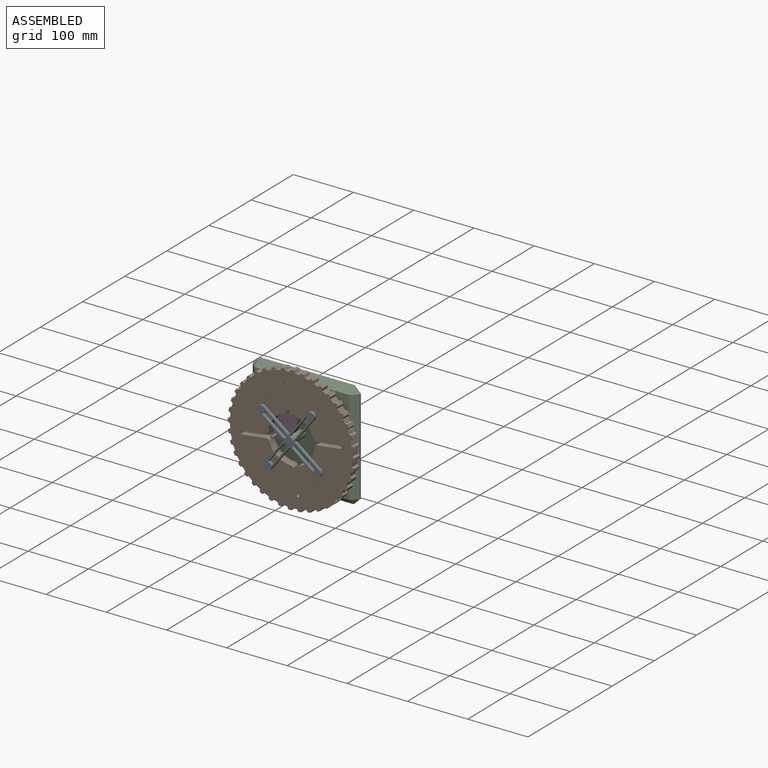
[diagram: assembled view]
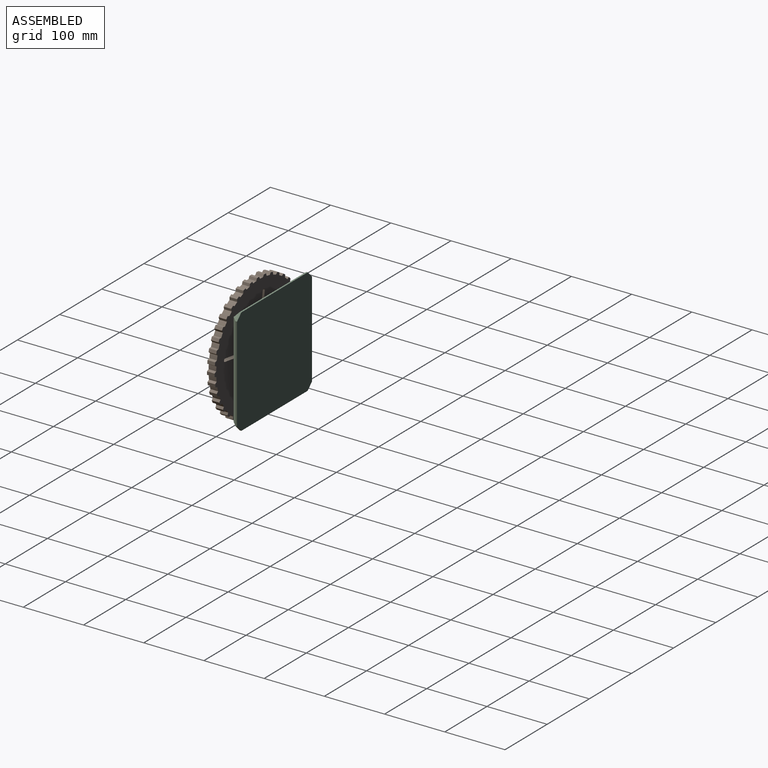
[diagram: assembled view, second angle]
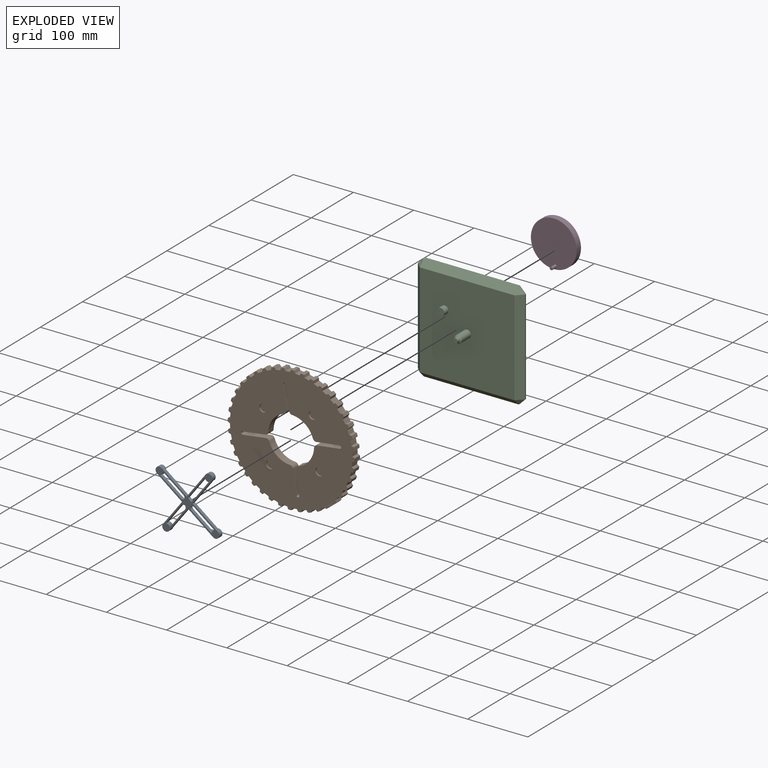
[diagram: exploded view]
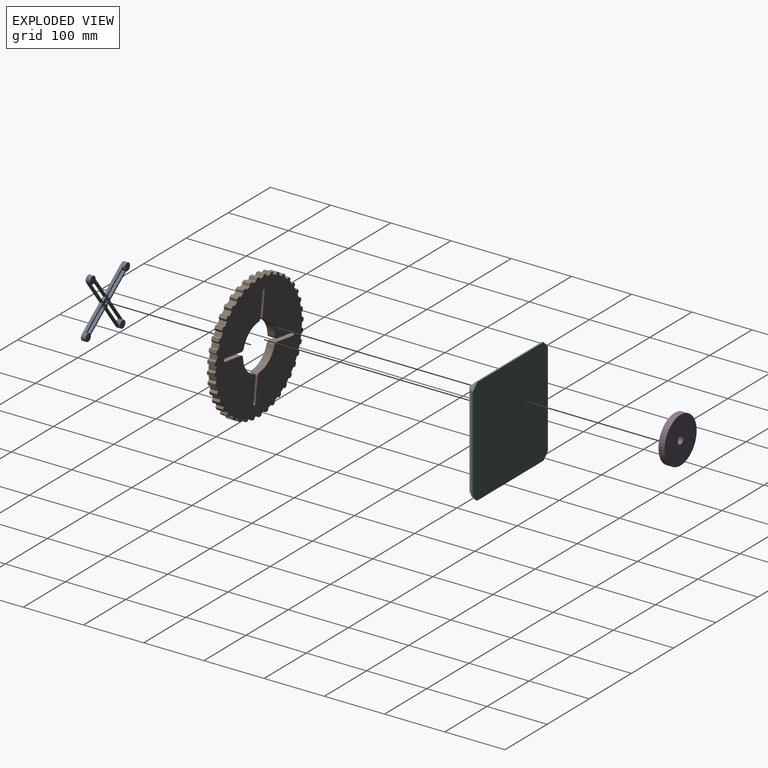
[diagram: exploded view, second angle]
ASSEMBLY  parts=4 mates=3
PART A: 35 faces, bbox 129.5x7.6x129.5 mm
  f0: plane 129.54x129.54mm, normal (0,-1,0), area 1686.7mm2, adj f1,f2,f3,f4,f5,f6,f7,f8
  f1: plane 41.91x5.08mm, normal (-1,0,0), area 212.9mm2, adj f0,f18,f22,f31
  f2: plane 41.91x5.08mm, normal (1,0,0), area 212.9mm2, adj f0,f18,f22,f32
  f3: plane 41.91x5.08mm, normal (0,0,1), area 212.9mm2, adj f0,f15,f22,f29
  f4: plane 41.91x5.08mm, normal (0,0,-1), area 212.9mm2, adj f0,f15,f22,f30
  f5: plane 41.91x5.08mm, normal (1,0,0), area 212.9mm2, adj f0,f12,f22,f27
  f6: plane 41.91x5.08mm, normal (-1,0,0), area 212.9mm2, adj f0,f12,f22,f28
  f7: plane 46.99x5.08mm, normal (0,0,-1), area 238.7mm2, adj f0,f8,f10,f22
  f8: cylinder r=6.35mm len=12.7mm, axis (0,1,0), area 244.2mm2, adj f0,f7,f9,f20,f21,f22,f26
  f9: plane 46.99x5.08mm, normal (0,0,1), area 238.7mm2, adj f0,f8,f10,f22
  f10: plane 7.62x5.08mm, normal (1,0,0), area 38.7mm2, adj f0,f7,f9,f22
  f11: plane 52.07x5.08mm, normal (1,0,0), area 264.5mm2, adj f0,f12,f21,f22
  f12: cylinder r=6.35mm len=12.7mm, axis (0,1,0), area 244.2mm2, adj f0,f5,f6,f11,f13,f22,f23
  f13: plane 52.07x5.08mm, normal (-1,0,0), area 264.5mm2, adj f0,f12,f14,f22
  f14: plane 52.07x5.08mm, normal (0,0,1), area 264.5mm2, adj f0,f13,f15,f22
  f15: cylinder r=6.35mm len=12.7mm, axis (0,1,0), area 244.2mm2, adj f0,f3,f4,f14,f16,f22,f24
  f16: plane 52.07x5.08mm, normal (0,0,-1), area 264.5mm2, adj f0,f15,f17,f22
  f17: plane 52.07x5.08mm, normal (-1,0,0), area 264.5mm2, adj f0,f16,f18,f22
  f18: cylinder r=6.35mm len=12.7mm, axis (0,1,0), area 244.2mm2, adj f0,f1,f2,f17,f19,f22,f25
  f19: plane 52.07x5.08mm, normal (1,0,0), area 264.5mm2, adj f0,f18,f20,f22
  f20: plane 52.07x5.08mm, normal (0,0,-1), area 264.5mm2, adj f0,f8,f19,f22
  f21: plane 52.07x5.08mm, normal (0,0,1), area 264.5mm2, adj f0,f8,f11,f22
  f22: plane 116.84x116.84mm, normal (0,1,0), area 1134.4mm2, adj f1,f2,f3,f4,f5,f6,f7,f8
  f23: plane 12.7x12.7mm, normal (0,1,0), area 126.7mm2, adj f12
  f24: plane 12.7x12.7mm, normal (0,1,0), area 126.7mm2, adj f15
  f25: plane 12.7x12.7mm, normal (0,1,0), area 126.7mm2, adj f18
  f26: plane 12.7x12.7mm, normal (0,1,0), area 126.7mm2, adj f8
  f27: cylinder r=5.08mm len=5.08mm, axis (0,-1,0), area 34mm2, adj f0,f5,f22,f28
  f28: cylinder r=5.08mm len=5.08mm, axis (0,1,0), area 34mm2, adj f0,f6,f22,f27
  f29: cylinder r=5.08mm len=5.08mm, axis (0,-1,0), area 34mm2, adj f0,f3,f22,f30
  f30: cylinder r=5.08mm len=5.08mm, axis (0,1,0), area 34mm2, adj f0,f4,f22,f29
  f31: cylinder r=5.08mm len=5.08mm, axis (0,-1,0), area 34mm2, adj f0,f1,f22,f32
  f32: cylinder r=5.08mm len=5.08mm, axis (0,1,0), area 34mm2, adj f0,f2,f22,f31
  f33: cylinder r=3.81mm len=7.62mm, axis (0,1,0), area 60.8mm2, adj f22,f34
  f34: plane 7.62x7.62mm, normal (0,1,0), area 45.6mm2, adj f33
PART B: 194 faces, bbox 210.8x12.7x210.8 mm
  f0: cylinder r=38.1mm len=30.78mm, axis (0,1,0), area 588.4mm2, adj f180,f181,f182,f189
  f1: plane 38.86x12.7mm, normal (0,0,-1), area 493.6mm2, adj f2,f180,f181,f182
  f2: cylinder r=2.54mm len=12.7mm, axis (0,1,0), area 101.3mm2, adj f1,f3,f180,f181
  f3: plane 38.86x12.7mm, normal (0,0,1), area 493.6mm2, adj f2,f180,f181,f183
  f4: cylinder r=38.1mm len=30.78mm, axis (0,1,0), area 588.4mm2, adj f180,f181,f183,f184
  f5: plane 38.86x12.7mm, normal (-1,0,0), area 493.6mm2, adj f6,f180,f181,f184
  f6: cylinder r=2.54mm len=12.7mm, axis (0,1,0), area 101.3mm2, adj f5,f7,f180,f181
  f7: plane 38.86x12.7mm, normal (1,0,0), area 493.6mm2, adj f6,f180,f181,f185
  f8: cylinder r=38.1mm len=30.78mm, axis (0,1,0), area 588.4mm2, adj f180,f181,f185,f186
  f9: plane 38.86x12.7mm, normal (0,0,1), area 493.6mm2, adj f10,f180,f181,f186
  f10: cylinder r=2.54mm len=12.7mm, axis (0,1,0), area 101.3mm2, adj f9,f11,f180,f181
  f11: plane 38.86x12.7mm, normal (0,0,-1), area 493.6mm2, adj f10,f180,f181,f187
  f12: cylinder r=38.1mm len=30.78mm, axis (0,1,0), area 588.4mm2, adj f180,f181,f187,f188
  f13: plane 38.86x12.7mm, normal (1,0,0), area 493.6mm2, adj f14,f180,f181,f188
  f14: cylinder r=2.54mm len=12.7mm, axis (0,1,0), area 101.3mm2, adj f13,f179,f180,f181
  f15: plane 12.7x3.57mm, normal (-0.83,0,-0.56), area 54.7mm2, adj f16,f178,f180,f181
  f16: plane 12.7x5.02mm, normal (0.16,0,-0.99), area 64.5mm2, adj f15,f17,f180,f181
  f17: plane 12.7x4.14mm, normal (0.96,0,-0.28), area 54.7mm2, adj f16,f18,f180,f181
  f18: cylinder r=101.6mm len=12.7mm, axis (0,1,0), area 91.9mm2, adj f17,f19,f180,f181
  f19: plane 12.7x3.15mm, normal (-0.73,0,-0.68), area 54.7mm2, adj f18,f20,f180,f181
  f20: plane 12.7x4.83mm, normal (0.31,0,-0.95), area 64.5mm2, adj f19,f21,f180,f181
  f21: plane 12.7x4.28mm, normal (0.99,0,-0.12), area 54.7mm2, adj f20,f22,f180,f181
  f22: cylinder r=101.6mm len=12.7mm, axis (0,1,0), area 91.9mm2, adj f21,f23,f180,f181
  f23: plane 12.7x3.39mm, normal (-0.62,0,-0.79), area 54.7mm2, adj f22,f24,f180,f181
  f24: plane 12.7x4.53mm, normal (0.45,0,-0.89), area 64.5mm2, adj f23,f25,f180,f181
  f25: plane 12.7x4.3mm, normal (1,0,0.03), area 54.7mm2, adj f24,f26,f180,f181
  f26: cylinder r=101.6mm len=12.7mm, axis (0,1,0), area 91.9mm2, adj f25,f27,f180,f181
  f27: plane 12.7x3.77mm, normal (-0.48,0,-0.87), area 54.7mm2, adj f26,f28,f180,f181
  f28: plane 12.7x4.11mm, normal (0.59,0,-0.81), area 64.5mm2, adj f27,f29,f180,f181
  f29: plane 12.7x4.23mm, normal (0.98,0,0.19), area 54.7mm2, adj f28,f30,f180,f181
  f30: cylinder r=101.6mm len=12.7mm, axis (0,1,0), area 91.9mm2, adj f29,f31,f180,f181
  f31: plane 12.7x4.05mm, normal (-0.34,0,-0.94), area 54.7mm2, adj f30,f32,f180,f181
  f32: plane 12.7x3.59mm, normal (0.71,0,-0.71), area 64.5mm2, adj f31,f33,f180,f181
  f33: plane 12.7x4.05mm, normal (0.94,0,0.34), area 54.7mm2, adj f32,f34,f180,f181
  f34: cylinder r=101.6mm len=12.7mm, axis (0,1,0), area 91.9mm2, adj f33,f35,f180,f181
  f35: plane 12.7x4.23mm, normal (-0.19,0,-0.98), area 54.7mm2, adj f34,f36,f180,f181
  f36: plane 12.7x4.11mm, normal (0.81,0,-0.59), area 64.5mm2, adj f35,f37,f180,f181
  f37: plane 12.7x3.77mm, normal (0.87,0,0.48), area 54.7mm2, adj f36,f38,f180,f181
  f38: cylinder r=101.6mm len=12.7mm, axis (0,1,0), area 91.9mm2, adj f37,f39,f180,f181
  f39: plane 12.7x4.3mm, normal (-0.03,0,-1), area 54.7mm2, adj f38,f40,f180,f181
  f40: plane 12.7x4.53mm, normal (0.89,0,-0.45), area 64.5mm2, adj f39,f41,f180,f181
  f41: plane 12.7x3.39mm, normal (0.79,0,0.62), area 54.7mm2, adj f40,f42,f180,f181
  f42: cylinder r=101.6mm len=12.7mm, axis (0,1,0), area 91.9mm2, adj f41,f43,f180,f181
  f43: plane 12.7x4.28mm, normal (0.12,0,-0.99), area 54.7mm2, adj f42,f44,f180,f181
  f44: plane 12.7x4.83mm, normal (0.95,0,-0.31), area 64.5mm2, adj f43,f45,f180,f181
  f45: plane 12.7x3.15mm, normal (0.68,0,0.73), area 54.7mm2, adj f44,f46,f180,f181
  f46: cylinder r=101.6mm len=12.7mm, axis (0,1,0), area 91.9mm2, adj f45,f47,f180,f181
  f47: plane 12.7x4.14mm, normal (0.28,0,-0.96), area 54.7mm2, adj f46,f48,f180,f181
  f48: plane 12.7x5.02mm, normal (0.99,0,-0.16), area 64.5mm2, adj f47,f49,f180,f181
  f49: plane 12.7x3.57mm, normal (0.56,0,0.83), area 54.7mm2, adj f48,f50,f180,f181
  f50: cylinder r=101.6mm len=12.7mm, axis (0,1,0), area 91.9mm2, adj f49,f51,f180,f181
  f51: plane 12.7x3.9mm, normal (0.42,0,-0.91), area 54.7mm2, adj f50,f52,f180,f181
  f52: plane 12.7x5.08mm, normal (1,0,0), area 64.5mm2, adj f51,f53,f180,f181
  f53: plane 12.7x3.9mm, normal (0.42,0,0.91), area 54.7mm2, adj f52,f54,f180,f181
  f54: cylinder r=101.6mm len=12.7mm, axis (0,1,0), area 91.9mm2, adj f53,f55,f180,f181
  f55: plane 12.7x3.57mm, normal (0.56,0,-0.83), area 54.7mm2, adj f54,f56,f180,f181
  f56: plane 12.7x5.02mm, normal (0.99,0,0.16), area 64.5mm2, adj f55,f57,f180,f181
  f57: plane 12.7x4.14mm, normal (0.28,0,0.96), area 54.7mm2, adj f56,f58,f180,f181
  f58: cylinder r=101.6mm len=12.7mm, axis (0,1,0), area 91.9mm2, adj f57,f59,f180,f181
  f59: plane 12.7x3.15mm, normal (0.68,0,-0.73), area 54.7mm2, adj f58,f60,f180,f181
  f60: plane 12.7x4.83mm, normal (0.95,0,0.31), area 64.5mm2, adj f59,f61,f180,f181
  f61: plane 12.7x4.28mm, normal (0.12,0,0.99), area 54.7mm2, adj f60,f62,f180,f181
  f62: cylinder r=101.6mm len=12.7mm, axis (0,1,0), area 91.9mm2, adj f61,f63,f180,f181
  f63: plane 12.7x3.39mm, normal (0.79,0,-0.62), area 54.7mm2, adj f62,f64,f180,f181
  f64: plane 12.7x4.53mm, normal (0.89,0,0.45), area 64.5mm2, adj f63,f65,f180,f181
  f65: plane 12.7x4.3mm, normal (-0.03,0,1), area 54.7mm2, adj f64,f66,f180,f181
  f66: cylinder r=101.6mm len=12.7mm, axis (0,1,0), area 91.9mm2, adj f65,f67,f180,f181
  f67: plane 12.7x3.77mm, normal (0.87,0,-0.48), area 54.7mm2, adj f66,f68,f180,f181
  f68: plane 12.7x4.11mm, normal (0.81,0,0.59), area 64.5mm2, adj f67,f69,f180,f181
  f69: plane 12.7x4.23mm, normal (-0.19,0,0.98), area 54.7mm2, adj f68,f70,f180,f181
  f70: cylinder r=101.6mm len=12.7mm, axis (0,1,0), area 91.9mm2, adj f69,f71,f180,f181
  f71: plane 12.7x4.05mm, normal (0.94,0,-0.34), area 54.7mm2, adj f70,f72,f180,f181
  f72: plane 12.7x3.59mm, normal (0.71,0,0.71), area 64.5mm2, adj f71,f73,f180,f181
  f73: plane 12.7x4.05mm, normal (-0.34,0,0.94), area 54.7mm2, adj f72,f74,f180,f181
  f74: cylinder r=101.6mm len=12.7mm, axis (0,1,0), area 91.9mm2, adj f73,f75,f180,f181
  f75: plane 12.7x4.23mm, normal (0.98,0,-0.19), area 54.7mm2, adj f74,f76,f180,f181
  f76: plane 12.7x4.11mm, normal (0.59,0,0.81), area 64.5mm2, adj f75,f77,f180,f181
  f77: plane 12.7x3.77mm, normal (-0.48,0,0.87), area 54.7mm2, adj f76,f78,f180,f181
  f78: cylinder r=101.6mm len=12.7mm, axis (0,1,0), area 91.9mm2, adj f77,f79,f180,f181
  f79: plane 12.7x4.3mm, normal (1,0,-0.03), area 54.7mm2, adj f78,f80,f180,f181
  f80: plane 12.7x4.53mm, normal (0.45,0,0.89), area 64.5mm2, adj f79,f81,f180,f181
  f81: plane 12.7x3.39mm, normal (-0.62,0,0.79), area 54.7mm2, adj f80,f82,f180,f181
  f82: cylinder r=101.6mm len=12.7mm, axis (0,1,0), area 91.9mm2, adj f81,f83,f180,f181
  f83: plane 12.7x4.28mm, normal (0.99,0,0.12), area 54.7mm2, adj f82,f84,f180,f181
  f84: plane 12.7x4.83mm, normal (0.31,0,0.95), area 64.5mm2, adj f83,f85,f180,f181
  f85: plane 12.7x3.15mm, normal (-0.73,0,0.68), area 54.7mm2, adj f84,f86,f180,f181
  f86: cylinder r=101.6mm len=12.7mm, axis (0,1,0), area 91.9mm2, adj f85,f87,f180,f181
  f87: plane 12.7x4.14mm, normal (0.96,0,0.28), area 54.7mm2, adj f86,f88,f180,f181
  f88: plane 12.7x5.02mm, normal (0.16,0,0.99), area 64.5mm2, adj f87,f89,f180,f181
  f89: plane 12.7x3.57mm, normal (-0.83,0,0.56), area 54.7mm2, adj f88,f90,f180,f181
  f90: cylinder r=101.6mm len=12.7mm, axis (0,1,0), area 91.9mm2, adj f89,f91,f180,f181
  f91: plane 12.7x3.9mm, normal (0.91,0,0.42), area 54.7mm2, adj f90,f92,f180,f181
  f92: plane 12.7x5.08mm, normal (0,0,1), area 64.5mm2, adj f91,f93,f180,f181
  f93: plane 12.7x3.9mm, normal (-0.91,0,0.42), area 54.7mm2, adj f92,f94,f180,f181
  f94: cylinder r=101.6mm len=12.7mm, axis (0,1,0), area 91.9mm2, adj f93,f95,f180,f181
  f95: plane 12.7x3.57mm, normal (0.83,0,0.56), area 54.7mm2, adj f94,f96,f180,f181
  f96: plane 12.7x5.02mm, normal (-0.16,0,0.99), area 64.5mm2, adj f95,f97,f180,f181
  f97: plane 12.7x4.14mm, normal (-0.96,0,0.28), area 54.7mm2, adj f96,f98,f180,f181
  f98: cylinder r=101.6mm len=12.7mm, axis (0,1,0), area 91.9mm2, adj f97,f99,f180,f181
  f99: plane 12.7x3.15mm, normal (0.73,0,0.68), area 54.7mm2, adj f98,f100,f180,f181
  f100: plane 12.7x4.83mm, normal (-0.31,0,0.95), area 64.5mm2, adj f99,f101,f180,f181
  f101: plane 12.7x4.28mm, normal (-0.99,0,0.12), area 54.7mm2, adj f100,f102,f180,f181
  f102: cylinder r=101.6mm len=12.7mm, axis (0,1,0), area 91.9mm2, adj f101,f103,f180,f181
  f103: plane 12.7x3.39mm, normal (0.62,0,0.79), area 54.7mm2, adj f102,f104,f180,f181
  f104: plane 12.7x4.53mm, normal (-0.45,0,0.89), area 64.5mm2, adj f103,f105,f180,f181
  f105: plane 12.7x4.3mm, normal (-1,0,-0.03), area 54.7mm2, adj f104,f106,f180,f181
  f106: cylinder r=101.6mm len=12.7mm, axis (0,1,0), area 91.9mm2, adj f105,f107,f180,f181
  f107: plane 12.7x3.77mm, normal (0.48,0,0.87), area 54.7mm2, adj f106,f108,f180,f181
  f108: plane 12.7x4.11mm, normal (-0.59,0,0.81), area 64.5mm2, adj f107,f109,f180,f181
  f109: plane 12.7x4.23mm, normal (-0.98,0,-0.19), area 54.7mm2, adj f108,f110,f180,f181
  f110: cylinder r=101.6mm len=12.7mm, axis (0,1,0), area 91.9mm2, adj f109,f111,f180,f181
  f111: plane 12.7x4.05mm, normal (0.34,0,0.94), area 54.7mm2, adj f110,f112,f180,f181
  f112: plane 12.7x3.59mm, normal (-0.71,0,0.71), area 64.5mm2, adj f111,f113,f180,f181
  f113: plane 12.7x4.05mm, normal (-0.94,0,-0.34), area 54.7mm2, adj f112,f114,f180,f181
  f114: cylinder r=101.6mm len=12.7mm, axis (0,1,0), area 91.9mm2, adj f113,f115,f180,f181
  f115: plane 12.7x4.23mm, normal (0.19,0,0.98), area 54.7mm2, adj f114,f116,f180,f181
  f116: plane 12.7x4.11mm, normal (-0.81,0,0.59), area 64.5mm2, adj f115,f117,f180,f181
  f117: plane 12.7x3.77mm, normal (-0.87,0,-0.48), area 54.7mm2, adj f116,f118,f180,f181
  f118: cylinder r=101.6mm len=12.7mm, axis (0,1,0), area 91.9mm2, adj f117,f119,f180,f181
  f119: plane 12.7x4.3mm, normal (0.03,0,1), area 54.7mm2, adj f118,f120,f180,f181
  f120: plane 12.7x4.53mm, normal (-0.89,0,0.45), area 64.5mm2, adj f119,f121,f180,f181
  f121: plane 12.7x3.39mm, normal (-0.79,0,-0.62), area 54.7mm2, adj f120,f122,f180,f181
  f122: cylinder r=101.6mm len=12.7mm, axis (0,1,0), area 91.9mm2, adj f121,f123,f180,f181
  f123: plane 12.7x4.28mm, normal (-0.12,0,0.99), area 54.7mm2, adj f122,f124,f180,f181
  f124: plane 12.7x4.83mm, normal (-0.95,0,0.31), area 64.5mm2, adj f123,f125,f180,f181
  f125: plane 12.7x3.15mm, normal (-0.68,0,-0.73), area 54.7mm2, adj f124,f126,f180,f181
  f126: cylinder r=101.6mm len=12.7mm, axis (0,1,0), area 91.9mm2, adj f125,f127,f180,f181
  f127: plane 12.7x4.14mm, normal (-0.28,0,0.96), area 54.7mm2, adj f126,f128,f180,f181
  f128: plane 12.7x5.02mm, normal (-0.99,0,0.16), area 64.5mm2, adj f127,f129,f180,f181
  f129: plane 12.7x3.57mm, normal (-0.56,0,-0.83), area 54.7mm2, adj f128,f130,f180,f181
  f130: cylinder r=101.6mm len=12.7mm, axis (0,1,0), area 91.9mm2, adj f129,f131,f180,f181
  f131: plane 12.7x3.9mm, normal (-0.42,0,0.91), area 54.7mm2, adj f130,f132,f180,f181
  f132: plane 12.7x5.08mm, normal (-1,0,0), area 64.5mm2, adj f131,f133,f180,f181
  f133: plane 12.7x3.9mm, normal (-0.42,0,-0.91), area 54.7mm2, adj f132,f134,f180,f181
  f134: cylinder r=101.6mm len=12.7mm, axis (0,1,0), area 91.9mm2, adj f133,f135,f180,f181
  f135: plane 12.7x3.57mm, normal (-0.56,0,0.83), area 54.7mm2, adj f134,f136,f180,f181
  f136: plane 12.7x5.02mm, normal (-0.99,0,-0.16), area 64.5mm2, adj f135,f137,f180,f181
  f137: plane 12.7x4.14mm, normal (-0.28,0,-0.96), area 54.7mm2, adj f136,f138,f180,f181
  f138: cylinder r=101.6mm len=12.7mm, axis (0,1,0), area 91.9mm2, adj f137,f139,f180,f181
  f139: plane 12.7x3.15mm, normal (-0.68,0,0.73), area 54.7mm2, adj f138,f140,f180,f181
  f140: plane 12.7x4.83mm, normal (-0.95,0,-0.31), area 64.5mm2, adj f139,f141,f180,f181
  f141: plane 12.7x4.28mm, normal (-0.12,0,-0.99), area 54.7mm2, adj f140,f142,f180,f181
  f142: cylinder r=101.6mm len=12.7mm, axis (0,1,0), area 91.9mm2, adj f141,f143,f180,f181
  f143: plane 12.7x3.39mm, normal (-0.79,0,0.62), area 54.7mm2, adj f142,f144,f180,f181
  f144: plane 12.7x4.53mm, normal (-0.89,0,-0.45), area 64.5mm2, adj f143,f145,f180,f181
  f145: plane 12.7x4.3mm, normal (0.03,0,-1), area 54.7mm2, adj f144,f146,f180,f181
  f146: cylinder r=101.6mm len=12.7mm, axis (0,1,0), area 91.9mm2, adj f145,f147,f180,f181
  f147: plane 12.7x3.77mm, normal (-0.87,0,0.48), area 54.7mm2, adj f146,f148,f180,f181
  f148: plane 12.7x4.11mm, normal (-0.81,0,-0.59), area 64.5mm2, adj f147,f149,f180,f181
  f149: plane 12.7x4.23mm, normal (0.19,0,-0.98), area 54.7mm2, adj f148,f150,f180,f181
  f150: cylinder r=101.6mm len=12.7mm, axis (0,1,0), area 91.9mm2, adj f149,f151,f180,f181
  f151: plane 12.7x4.05mm, normal (-0.94,0,0.34), area 54.7mm2, adj f150,f152,f180,f181
  f152: plane 12.7x3.59mm, normal (-0.71,0,-0.71), area 64.5mm2, adj f151,f153,f180,f181
  f153: plane 12.7x4.05mm, normal (0.34,0,-0.94), area 54.7mm2, adj f152,f154,f180,f181
  f154: cylinder r=101.6mm len=12.7mm, axis (0,1,0), area 91.9mm2, adj f153,f155,f180,f181
  f155: plane 12.7x4.23mm, normal (-0.98,0,0.19), area 54.7mm2, adj f154,f156,f180,f181
  f156: plane 12.7x4.11mm, normal (-0.59,0,-0.81), area 64.5mm2, adj f155,f157,f180,f181
  f157: plane 12.7x3.77mm, normal (0.48,0,-0.87), area 54.7mm2, adj f156,f158,f180,f181
  f158: cylinder r=101.6mm len=12.7mm, axis (0,1,0), area 91.9mm2, adj f157,f159,f180,f181
  f159: plane 12.7x4.3mm, normal (-1,0,0.03), area 54.7mm2, adj f158,f160,f180,f181
  f160: plane 12.7x4.53mm, normal (-0.45,0,-0.89), area 64.5mm2, adj f159,f161,f180,f181
  f161: plane 12.7x3.39mm, normal (0.62,0,-0.79), area 54.7mm2, adj f160,f162,f180,f181
  f162: cylinder r=101.6mm len=12.7mm, axis (0,1,0), area 91.9mm2, adj f161,f163,f180,f181
  f163: plane 12.7x4.28mm, normal (-0.99,0,-0.12), area 54.7mm2, adj f162,f164,f180,f181
  f164: plane 12.7x4.83mm, normal (-0.31,0,-0.95), area 64.5mm2, adj f163,f165,f180,f181
  f165: plane 12.7x3.15mm, normal (0.73,0,-0.68), area 54.7mm2, adj f164,f166,f180,f181
  f166: cylinder r=101.6mm len=12.7mm, axis (0,1,0), area 91.9mm2, adj f165,f167,f180,f181
  f167: plane 12.7x4.14mm, normal (-0.96,0,-0.28), area 54.7mm2, adj f166,f168,f180,f181
  f168: plane 12.7x5.02mm, normal (-0.16,0,-0.99), area 64.5mm2, adj f167,f169,f180,f181
  f169: plane 12.7x3.57mm, normal (0.83,0,-0.56), area 54.7mm2, adj f168,f170,f180,f181
  f170: cylinder r=101.6mm len=12.7mm, axis (0,1,0), area 91.9mm2, adj f169,f171,f180,f181
  f171: plane 12.7x3.9mm, normal (-0.91,0,-0.42), area 54.7mm2, adj f170,f172,f180,f181
  f172: plane 12.7x5.08mm, normal (0,0,-1), area 64.5mm2, adj f171,f173,f180,f181
  f173: plane 12.7x3.9mm, normal (0.91,0,-0.42), area 54.7mm2, adj f172,f178,f180,f181
  f174: cylinder r=6.35mm len=12.7mm, axis (0,1,0), area 101.3mm2, adj f180,f190
  f175: cylinder r=6.35mm len=12.7mm, axis (0,1,0), area 101.3mm2, adj f180,f191
  f176: cylinder r=6.35mm len=12.7mm, axis (0,1,0), area 101.3mm2, adj f180,f192
  f177: cylinder r=6.35mm len=12.7mm, axis (0,1,0), area 101.3mm2, adj f180,f193
  f178: cylinder r=101.6mm len=12.7mm, axis (0,1,0), area 91.9mm2, adj f15,f173,f180,f181
  f179: plane 38.86x12.7mm, normal (-1,0,0), area 493.6mm2, adj f14,f180,f181,f189
  f180: plane 210.82x210.82mm, normal (0,-1,0), area 27466.1mm2, adj f0,f1,f2,f3,f4,f5,f6,f7
  f181: plane 210.82x210.82mm, normal (0,1,0), area 27972.8mm2, adj f0,f1,f2,f3,f4,f5,f6,f7
  f182: cylinder r=5.08mm len=12.7mm, axis (0,1,0), area 89.9mm2, adj f0,f1,f180,f181
  f183: cylinder r=5.08mm len=12.7mm, axis (0,1,0), area 89.9mm2, adj f3,f4,f180,f181
  f184: cylinder r=5.08mm len=12.7mm, axis (0,1,0), area 89.9mm2, adj f4,f5,f180,f181
  f185: cylinder r=5.08mm len=12.7mm, axis (0,1,0), area 89.9mm2, adj f7,f8,f180,f181
  f186: cylinder r=5.08mm len=12.7mm, axis (0,1,0), area 89.9mm2, adj f8,f9,f180,f181
  f187: cylinder r=5.08mm len=12.7mm, axis (0,1,0), area 89.9mm2, adj f11,f12,f180,f181
  f188: cylinder r=5.08mm len=12.7mm, axis (0,1,0), area 89.9mm2, adj f12,f13,f180,f181
  f189: cylinder r=5.08mm len=12.7mm, axis (0,1,0), area 89.9mm2, adj f0,f179,f180,f181
  f190: plane 12.7x12.7mm, normal (0,-1,0), area 126.7mm2, adj f174
  f191: plane 12.7x12.7mm, normal (0,-1,0), area 126.7mm2, adj f175
  f192: plane 12.7x12.7mm, normal (0,-1,0), area 126.7mm2, adj f176
  f193: plane 12.7x12.7mm, normal (0,-1,0), area 126.7mm2, adj f177
PART C: 24 faces, bbox 177.8x40.6x177.8 mm
  f0: plane 157.48x2.54mm, normal (1,0,0), area 400mm2, adj f5,f14,f19,f20
  f1: plane 157.48x2.54mm, normal (0,0,1), area 400mm2, adj f5,f12,f13,f14
  f2: plane 157.48x2.54mm, normal (-1,0,0), area 400mm2, adj f5,f12,f17,f18
  f3: plane 157.48x2.54mm, normal (0,0,-1), area 400mm2, adj f5,f17,f20,f23
  f4: plane 157.48x157.48mm, normal (0,-1,0), area 24546.6mm2, adj f6,f10,f13,f18,f19,f23
  f5: plane 177.8x177.8mm, normal (0,1,0), area 31406.4mm2, adj f0,f1,f2,f3,f12,f14,f17,f20
  f6: cylinder r=6.35mm len=21.59mm, axis (0,1,0), area 861.4mm2, adj f4,f9
  f7: cylinder r=3.81mm len=7.62mm, axis (0,1,0), area 91.2mm2, adj f8,f9
  f8: plane 7.62x7.62mm, normal (0,-1,0), area 45.6mm2, adj f7
  f9: cone r=2.54mm half-angle=45deg, axis (0,1,0), area 114.7mm2, adj f6,f7
  f10: cylinder r=6.35mm len=12.7mm, axis (0,1,0), area 385.1mm2, adj f4,f11
  f11: plane 12.7x12.7mm, normal (0,-1,0), area 126.7mm2, adj f10
  f12: plane 10.16x10.16mm, normal (-0.71,0,0.71), area 36.5mm2, adj f1,f2,f5,f15
  f13: plane 157.48x10.16mm, normal (0,-0.71,0.71), area 2262.7mm2, adj f1,f4,f15,f16
  f14: plane 10.16x10.16mm, normal (0.71,0,0.71), area 36.5mm2, adj f0,f1,f5,f16
  f15: plane 10.16x10.16mm, normal (-0.58,-0.58,0.58), area 89.4mm2, adj f12,f13,f18
  f16: plane 10.16x10.16mm, normal (0.58,-0.58,0.58), area 89.4mm2, adj f13,f14,f19
  f17: plane 10.16x10.16mm, normal (-0.71,0,-0.71), area 36.5mm2, adj f2,f3,f5,f21
  f18: plane 157.48x10.16mm, normal (-0.71,-0.71,0), area 2262.7mm2, adj f2,f4,f15,f21
  f19: plane 157.48x10.16mm, normal (0.71,-0.71,0), area 2262.7mm2, adj f0,f4,f16,f22
  f20: plane 10.16x10.16mm, normal (0.71,0,-0.71), area 36.5mm2, adj f0,f3,f5,f22
  f21: plane 10.16x10.16mm, normal (-0.58,-0.58,-0.58), area 89.4mm2, adj f17,f18,f23
  f22: plane 10.16x10.16mm, normal (0.58,-0.58,-0.58), area 89.4mm2, adj f19,f20,f23
  f23: plane 157.48x10.16mm, normal (0,-0.71,-0.71), area 2262.7mm2, adj f3,f4,f21,f22
PART D: 7 faces, bbox 76.2x20.3x76.2 mm
  f0: cylinder r=38.1mm len=76.2mm, axis (0,1,0), area 2432.2mm2, adj f1,f2
  f1: plane 76.2x76.2mm, normal (0,-1,0), area 4542.1mm2, adj f0,f3
  f2: plane 76.2x76.2mm, normal (0,1,0), area 4433.7mm2, adj f0,f5
  f3: cylinder r=2.41mm len=10.16mm, axis (0,1,0), area 154mm2, adj f1,f4
  f4: plane 4.83x4.83mm, normal (0,-1,0), area 18.3mm2, adj f3
  f5: cylinder r=6.35mm len=12.7mm, axis (0,1,0), area 304mm2, adj f2,f6
  f6: plane 12.7x12.7mm, normal (0,1,0), area 126.7mm2, adj f5
PLACE A rot(axis=(0,-1,0),52.8deg) t=(23.24,-56.88,5.46)mm
PLACE B rot(axis=(0,-1,0),97.8deg) t=(23.24,-82.28,5.46)mm
PLACE C t=(23.24,-56.63,5.46)mm fixed
PLACE D rot(axis=(0,1,0),175deg) t=(-14.21,-71.36,31.68)mm
MATE revolute C.f7 <-> A.f33  axis (0,-1,0) through (23.24,-97.27,5.46)mm
MATE revolute D.f5 <-> C.f10  axis (0,1,0) through (-14.21,-78.98,31.68)mm
MATE fastened B.f176 <-> A.f12  axis (0,-1,0) through (-23.27,-92.44,40.81)mm
